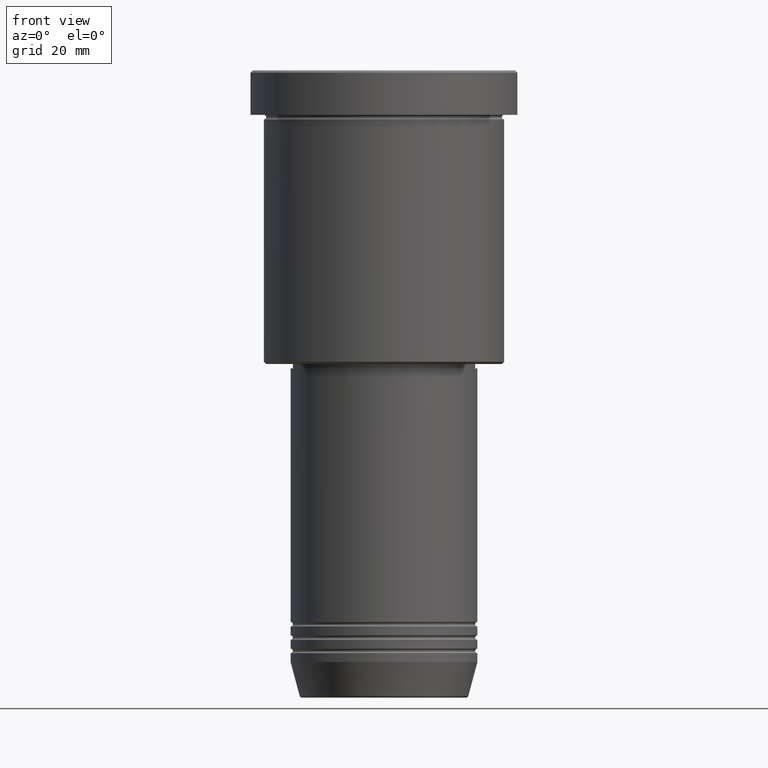
[diagram: clean part render]
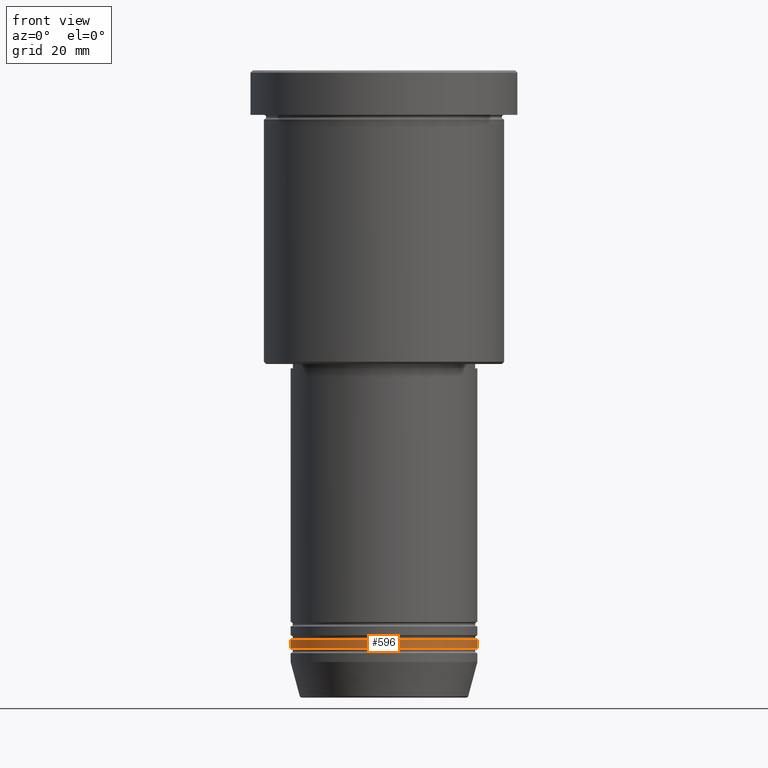
[diagram: same view with one face highlighted and labeled with its STEP entity id]
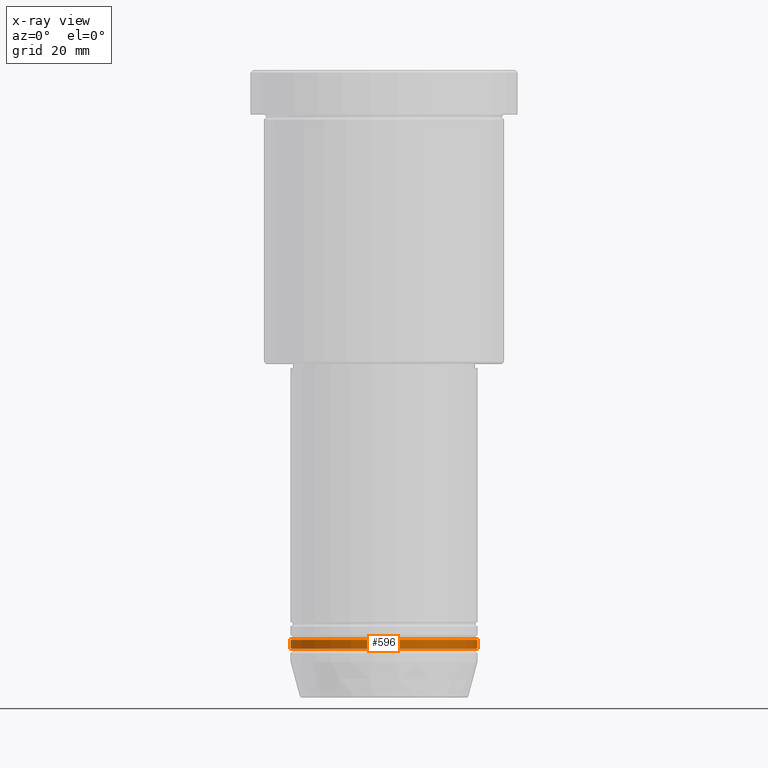
[diagram: x-ray of the same camera — body ghosted, the highlighted face saturated]
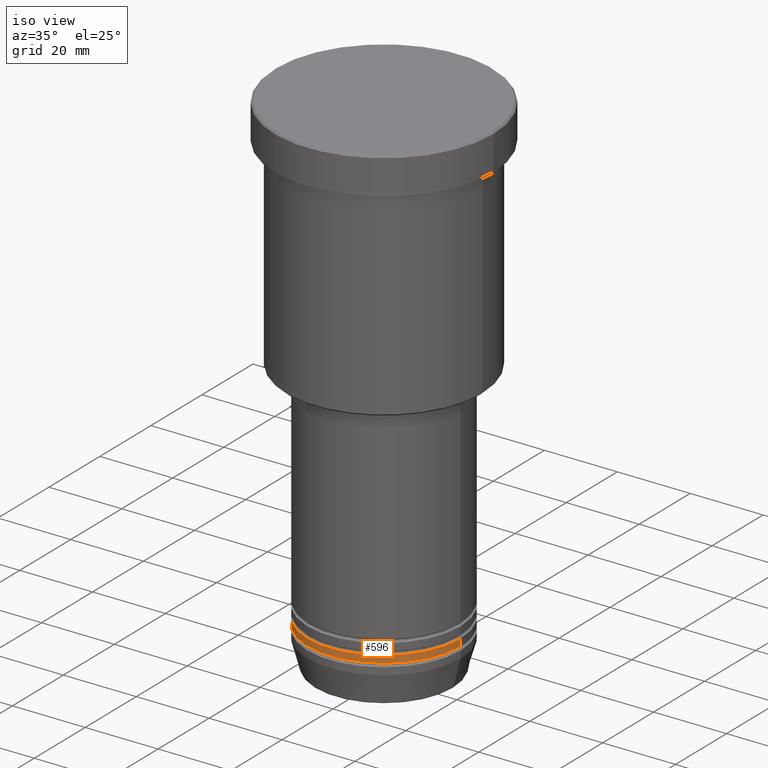
[diagram: same view with one face highlighted and labeled with its STEP entity id]
A machine part, front view. The second image highlights one B-rep face of the part: STEP entity #596.
The next image is the same camera in x-ray: the body ghosted, the highlighted face saturated — about 0% of this face is hidden behind the body in this view.
A second angle (iso view) of the same face is appended — the face is thin or edge-on in the first view.
In plain terms, the highlighted cylindrical surface (partial cylindrical patch) has radius 21 mm, axis along (-0, -0, 1).
Its self-contained STEP definition (entity closure, byte-faithful):
#82 = ORIENTED_EDGE ( 'NONE', *, *, #504, .F. ) ;
#91 = CARTESIAN_POINT ( 'NONE',  ( -21.00000000000000000, 2.571758278209441661E-15, -128.0000000000000000 ) ) ;
#155 = VECTOR ( 'NONE', #978, 1000.000000000000000 ) ;
#159 = CARTESIAN_POINT ( 'NONE',  ( 21.00000000000000000, 0.000000000000000000, -129.9999999999999716 ) ) ;
#172 = CIRCLE ( 'NONE', #1111, 21.00000000000000000 ) ;
#207 = CARTESIAN_POINT ( 'NONE',  ( 0.000000000000000000, 0.000000000000000000, -128.0000000000000000 ) ) ;
#208 = EDGE_LOOP ( 'NONE', ( #1037, #429, #353, #82 ) ) ;
#229 = FACE_OUTER_BOUND ( 'NONE', #208, .T. ) ;
#295 = DIRECTION ( 'NONE',  ( -0.000000000000000000, -0.000000000000000000, 1.000000000000000000 ) ) ;
#353 = ORIENTED_EDGE ( 'NONE', *, *, #1129, .T. ) ;
#365 = VECTOR ( 'NONE', #925, 1000.000000000000000 ) ;
#385 = VERTEX_POINT ( 'NONE', #553 ) ;
#408 = DIRECTION ( 'NONE',  ( -0.000000000000000000, -0.000000000000000000, 1.000000000000000000 ) ) ;
#429 = ORIENTED_EDGE ( 'NONE', *, *, #619, .T. ) ;
#434 = CARTESIAN_POINT ( 'NONE',  ( -21.00000000000000000, 2.571758278209441661E-15, 0.000000000000000000 ) ) ;
#435 = EDGE_CURVE ( 'NONE', #385, #929, #807, .T. ) ;
#504 = EDGE_CURVE ( 'NONE', #929, #851, #172, .T. ) ;
#553 = CARTESIAN_POINT ( 'NONE',  ( -21.00000000000000000, 2.571758278209441661E-15, -129.9999999999999716 ) ) ;
#590 = VERTEX_POINT ( 'NONE', #159 ) ;
#596 = ADVANCED_FACE ( 'NONE', ( #229 ), #802, .T. ) ;
#598 = CARTESIAN_POINT ( 'NONE',  ( 0.000000000000000000, 0.000000000000000000, -129.9999999999999716 ) ) ;
#619 = EDGE_CURVE ( 'NONE', #385, #590, #754, .T. ) ;
#685 = CARTESIAN_POINT ( 'NONE',  ( 0.000000000000000000, 0.000000000000000000, 0.000000000000000000 ) ) ;
#704 = LINE ( 'NONE', #1066, #155 ) ;
#730 = CARTESIAN_POINT ( 'NONE',  ( 21.00000000000000000, 0.000000000000000000, -128.0000000000000000 ) ) ;
#754 = CIRCLE ( 'NONE', #979, 21.00000000000000000 ) ;
#769 = DIRECTION ( 'NONE',  ( 1.000000000000000000, 0.000000000000000000, 0.000000000000000000 ) ) ;
#802 = CYLINDRICAL_SURFACE ( 'NONE', #1004, 21.00000000000000000 ) ;
#807 = LINE ( 'NONE', #434, #365 ) ;
#851 = VERTEX_POINT ( 'NONE', #730 ) ;
#894 = DIRECTION ( 'NONE',  ( 1.000000000000000000, 0.000000000000000000, 0.000000000000000000 ) ) ;
#925 = DIRECTION ( 'NONE',  ( -0.000000000000000000, -0.000000000000000000, 1.000000000000000000 ) ) ;
#929 = VERTEX_POINT ( 'NONE', #91 ) ;
#978 = DIRECTION ( 'NONE',  ( -0.000000000000000000, -0.000000000000000000, 1.000000000000000000 ) ) ;
#979 = AXIS2_PLACEMENT_3D ( 'NONE', #598, #1161, #894 ) ;
#1004 = AXIS2_PLACEMENT_3D ( 'NONE', #685, #408, #1055 ) ;
#1037 = ORIENTED_EDGE ( 'NONE', *, *, #435, .F. ) ;
#1055 = DIRECTION ( 'NONE',  ( 1.000000000000000000, 0.000000000000000000, 0.000000000000000000 ) ) ;
#1066 = CARTESIAN_POINT ( 'NONE',  ( 21.00000000000000000, 0.000000000000000000, 0.000000000000000000 ) ) ;
#1111 = AXIS2_PLACEMENT_3D ( 'NONE', #207, #295, #769 ) ;
#1129 = EDGE_CURVE ( 'NONE', #590, #851, #704, .T. ) ;
#1161 = DIRECTION ( 'NONE',  ( -0.000000000000000000, -0.000000000000000000, 1.000000000000000000 ) ) ;